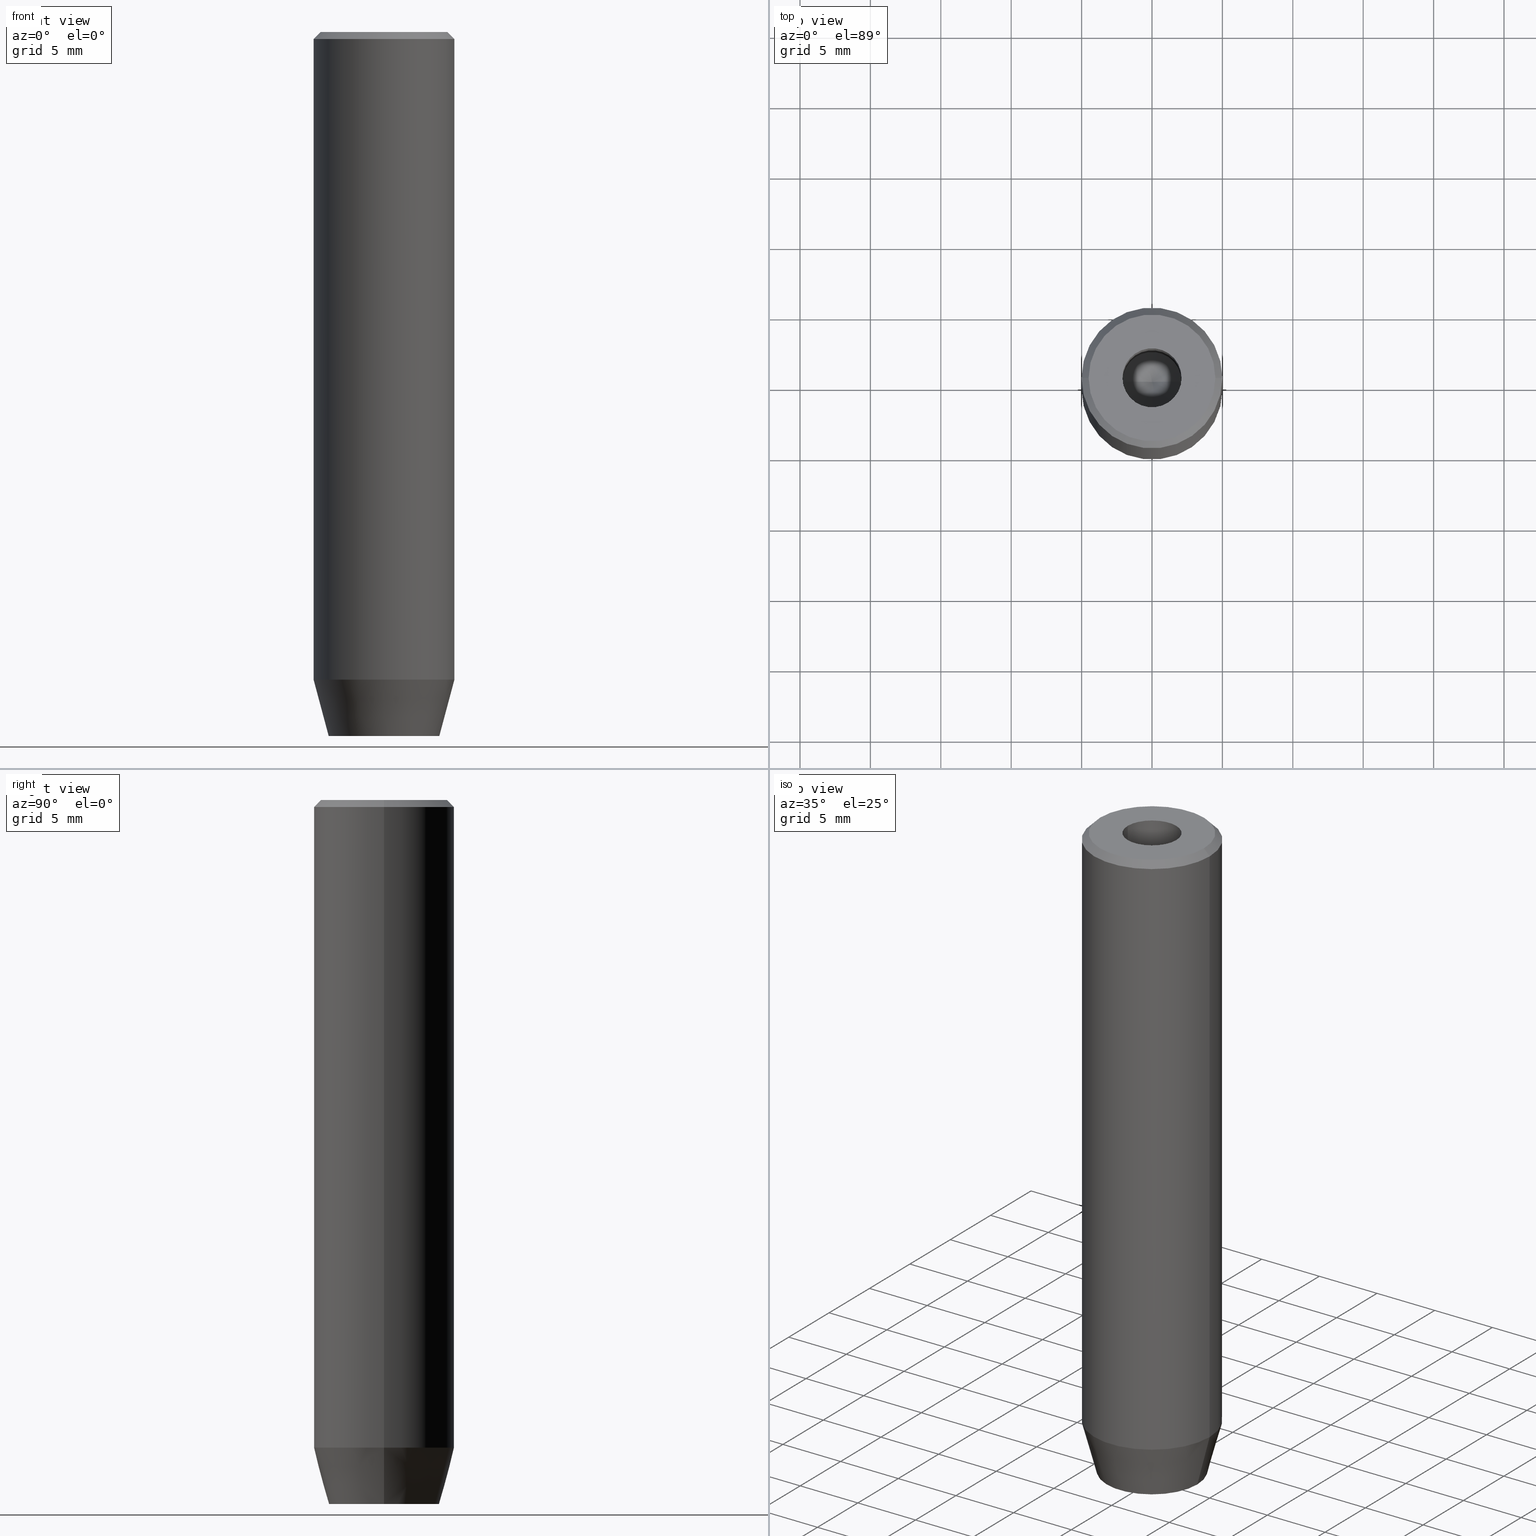
[diagram: canonical four-view strip — front | top / right | iso, engineering-drawing reading convention]
A machine part, canonical four-view strip (front | top / right | iso — engineering-drawing reading convention). The complete STEP part file that produces these views, byte-faithful:
ISO-10303-21;
HEADER;
FILE_DESCRIPTION (( 'STEP AP203' ),
    '1' );
FILE_NAME ('db99.STEP',
    '2024-01-02T23:07:46',
    ( '' ),
    ( '' ),
    'SwSTEP 2.0',
    'SolidWorks 2019',
    '' );
FILE_SCHEMA (( 'CONFIG_CONTROL_DESIGN' ));
ENDSEC;

DATA;
#1 = DIRECTION ( 'NONE',  ( -0.000000000000000000, -0.000000000000000000, 1.000000000000000000 ) ) ;
#2 = LINE ( 'NONE', #177, #182 ) ;
#3 = EDGE_CURVE ( 'NONE', #243, #295, #67, .T. ) ;
#4 = DIRECTION ( 'NONE',  ( -0.000000000000000000, -0.000000000000000000, 1.000000000000000000 ) ) ;
#5 = DIRECTION ( 'NONE',  ( -0.000000000000000000, -0.000000000000000000, -1.000000000000000000 ) ) ;
#6 = AXIS2_PLACEMENT_3D ( 'NONE', #488, #83, #267 ) ;
#7 = CARTESIAN_POINT ( 'NONE',  ( 2.000000000000000888, -1.154700538379252572, -47.20000000000000284 ) ) ;
#8 = EDGE_LOOP ( 'NONE', ( #198, #510, #54, #251 ) ) ;
#9 = CARTESIAN_POINT ( 'NONE',  ( 0.000000000000000000, 0.000000000000000000, 0.000000000000000000 ) ) ;
#10 = FACE_OUTER_BOUND ( 'NONE', #161, .T. ) ;
#11 = ORIENTED_EDGE ( 'NONE', *, *, #30, .F. ) ;
#12 = ADVANCED_FACE ( 'NONE', ( #63 ), #222, .F. ) ;
#13 = ORIENTED_EDGE ( 'NONE', *, *, #552, .F. ) ;
#14 = ORIENTED_EDGE ( 'NONE', *, *, #470, .T. ) ;
#15 = AXIS2_PLACEMENT_3D ( 'NONE', #231, #185, #364 ) ;
#16 = EDGE_CURVE ( 'NONE', #561, #379, #352, .T. ) ;
#17 = CARTESIAN_POINT ( 'NONE',  ( 0.000000000000000000, 0.000000000000000000, -46.00000000000000000 ) ) ;
#18 = ORIENTED_EDGE ( 'NONE', *, *, #101, .T. ) ;
#19 = CARTESIAN_POINT ( 'NONE',  ( 2.099999999999997868, 0.000000000000000000, 0.000000000000000000 ) ) ;
#20 = ORIENTED_EDGE ( 'NONE', *, *, #224, .T. ) ;
#21 = LINE ( 'NONE', #238, #201 ) ;
#22 = EDGE_LOOP ( 'NONE', ( #551, #96, #205, #208 ) ) ;
#23 = DIRECTION ( 'NONE',  ( -0.000000000000000000, -0.000000000000000000, 1.000000000000000000 ) ) ;
#24 = EDGE_LOOP ( 'NONE', ( #389, #195, #98, #93, #433, #100 ) ) ;
#25 = EDGE_CURVE ( 'NONE', #236, #104, #170, .T. ) ;
#26 = MECHANICAL_CONTEXT ( 'NONE', #517, 'mechanical' ) ;
#27 = ORIENTED_EDGE ( 'NONE', *, *, #235, .F. ) ;
#28 = APPROVAL_DATE_TIME ( #339, #48 ) ;
#29 = ORIENTED_EDGE ( 'NONE', *, *, #178, .F. ) ;
#30 = EDGE_CURVE ( 'NONE', #374, #368, #181, .T. ) ;
#31 = PERSON_AND_ORGANIZATION ( #171, #40 ) ;
#32 = PLANE ( 'NONE',  #192 ) ;
#33 = CARTESIAN_POINT ( 'NONE',  ( -1.999999999999998668, -1.154700538379252572, -50.00000000000000000 ) ) ;
#34 = CARTESIAN_POINT ( 'NONE',  ( -2.099999999999998757, 2.571758278209439985E-16, -1.990051048614449116E-16 ) ) ;
#35 = APPLICATION_PROTOCOL_DEFINITION ( 'international standard', 'config_control_design', 1994, #263 ) ;
#36 = LINE ( 'NONE', #39, #574 ) ;
#37 = LINE ( 'NONE', #175, #429 ) ;
#38 = AXIS2_PLACEMENT_3D ( 'NONE', #310, #79, #262 ) ;
#39 = CARTESIAN_POINT ( 'NONE',  ( -2.099999999999997868, 2.571758278209438999E-16, 0.000000000000000000 ) ) ;
#40 = ORGANIZATION ( 'NEUR�EN�', 'NEUR�EN�', '' ) ;
#41 = CARTESIAN_POINT ( 'NONE',  ( 0.000000000000000000, 0.000000000000000000, -1.990051048614449116E-16 ) ) ;
#42 = EDGE_CURVE ( 'NONE', #145, #74, #122, .T. ) ;
#43 = CARTESIAN_POINT ( 'NONE',  ( 5.000000000000000000, 0.000000000000000000, -0.4999999999999995559 ) ) ;
#44 = FACE_OUTER_BOUND ( 'NONE', #53, .T. ) ;
#45 = DIRECTION ( 'NONE',  ( -0.000000000000000000, -0.000000000000000000, -1.000000000000000000 ) ) ;
#46 = ORIENTED_EDGE ( 'NONE', *, *, #343, .F. ) ;
#47 = CARTESIAN_POINT ( 'NONE',  ( -5.000000000000000000, 6.123233995736766282E-16, -46.00000000000000000 ) ) ;
#48 = APPROVAL ( #80, 'NEUR�EN�' ) ;
#49 = CIRCLE ( 'NONE', #380, 5.000000000000000000 ) ;
#50 = CARTESIAN_POINT ( 'NONE',  ( -1.999999999999998668, -1.154700538379252572, -47.20000000000000284 ) ) ;
#51 = ORIENTED_EDGE ( 'NONE', *, *, #241, .T. ) ;
#52 = CC_DESIGN_PERSON_AND_ORGANIZATION_ASSIGNMENT ( #129, #438, ( #146 ) ) ;
#53 = EDGE_LOOP ( 'NONE', ( #232, #425, #14, #280 ) ) ;
#54 = ORIENTED_EDGE ( 'NONE', *, *, #65, .F. ) ;
#55 = ADVANCED_FACE ( 'NONE', ( #307 ), #577, .F. ) ;
#56 = CARTESIAN_POINT ( 'NONE',  ( 2.000000000000000888, 0.000000000000000000, -50.00000000000000000 ) ) ;
#57 = VERTEX_POINT ( 'NONE', #538 ) ;
#58 = AXIS2_PLACEMENT_3D ( 'NONE', #318, #227, #548 ) ;
#59 = CC_DESIGN_APPROVAL ( #142, ( #146 ) ) ;
#60 = DIRECTION ( 'NONE',  ( 0.8660254037844385966, -0.5000000000000001110, 0.000000000000000000 ) ) ;
#61 = EDGE_LOOP ( 'NONE', ( #508, #66, #411, #456 ) ) ;
#62 = CARTESIAN_POINT ( 'NONE',  ( 1.000000000000000444, 1.732050807568877637, -50.00000000000000000 ) ) ;
#63 = FACE_OUTER_BOUND ( 'NONE', #61, .T. ) ;
#64 = FACE_OUTER_BOUND ( 'NONE', #248, .T. ) ;
#65 = EDGE_CURVE ( 'NONE', #104, #111, #49, .T. ) ;
#66 = ORIENTED_EDGE ( 'NONE', *, *, #224, .F. ) ;
#67 = CIRCLE ( 'NONE', #359, 4.499999999999997335 ) ;
#68 = VECTOR ( 'NONE', #557, 1000.000000000000000 ) ;
#69 = PERSON_AND_ORGANIZATION_ROLE ( 'design_supplier' ) ;
#70 = ORIENTED_EDGE ( 'NONE', *, *, #451, .T. ) ;
#71 = VERTEX_POINT ( 'NONE', #126 ) ;
#72 = EDGE_CURVE ( 'NONE', #335, #379, #247, .T. ) ;
#73 = DATE_TIME_ROLE ( 'creation_date' ) ;
#74 = VERTEX_POINT ( 'NONE', #75 ) ;
#75 = CARTESIAN_POINT ( 'NONE',  ( 2.168404344971008868E-16, -2.309401076758503812, -50.00000000000000000 ) ) ;
#76 = AXIS2_PLACEMENT_3D ( 'NONE', #326, #110, #246 ) ;
#77 = APPROVAL_PERSON_ORGANIZATION ( #264, #142, #207 ) ;
#78 = DIRECTION ( 'NONE',  ( -1.000000000000000000, 0.000000000000000000, -0.000000000000000000 ) ) ;
#79 = DIRECTION ( 'NONE',  ( 0.000000000000000000, 0.000000000000000000, -1.000000000000000000 ) ) ;
#80 = APPROVAL_STATUS ( 'not_yet_approved' ) ;
#81 = DIRECTION ( 'NONE',  ( -0.8660254037844388186, -0.4999999999999996114, 0.000000000000000000 ) ) ;
#82 = CARTESIAN_POINT ( 'NONE',  ( 2.168404344971008868E-16, -2.309401076758503812, -47.20000000000000284 ) ) ;
#83 = DIRECTION ( 'NONE',  ( 0.5000000000000001110, 0.8660254037844385966, -0.000000000000000000 ) ) ;
#84 = EDGE_CURVE ( 'NONE', #74, #117, #356, .T. ) ;
#85 = DIRECTION ( 'NONE',  ( -0.000000000000000000, -0.000000000000000000, 1.000000000000000000 ) ) ;
#86 = CARTESIAN_POINT ( 'NONE',  ( 0.9999999999999997780, -1.732050807568878747, -50.00000000000000000 ) ) ;
#87 = CARTESIAN_POINT ( 'NONE',  ( 2.000000000000000888, -1.154700538379252572, -47.20000000000000284 ) ) ;
#88 = CARTESIAN_POINT ( 'NONE',  ( 0.000000000000000000, 0.000000000000000000, -46.00000000000000000 ) ) ;
#89 = VERTEX_POINT ( 'NONE', #443 ) ;
#90 = CARTESIAN_POINT ( 'NONE',  ( 0.000000000000000000, 0.000000000000000000, 0.000000000000000000 ) ) ;
#91 = EDGE_CURVE ( 'NONE', #335, #299, #36, .T. ) ;
#92 = DIRECTION ( 'NONE',  ( -0.5000000000000000000, -0.8660254037844387076, 0.000000000000000000 ) ) ;
#93 = ORIENTED_EDGE ( 'NONE', *, *, #390, .T. ) ;
#94 = FACE_OUTER_BOUND ( 'NONE', #22, .T. ) ;
#95 = AXIS2_PLACEMENT_3D ( 'NONE', #536, #405, #399 ) ;
#96 = ORIENTED_EDGE ( 'NONE', *, *, #91, .T. ) ;
#97 = CC_DESIGN_SECURITY_CLASSIFICATION ( #458, ( #146 ) ) ;
#98 = ORIENTED_EDGE ( 'NONE', *, *, #419, .T. ) ;
#99 = CARTESIAN_POINT ( 'NONE',  ( 0.9999999999999997780, -1.732050807568878747, -47.20000000000000284 ) ) ;
#100 = ORIENTED_EDGE ( 'NONE', *, *, #403, .T. ) ;
#101 = EDGE_CURVE ( 'NONE', #379, #335, #484, .T. ) ;
#102 = DIRECTION ( 'NONE',  ( -0.5000000000000001110, 0.8660254037844385966, 0.000000000000000000 ) ) ;
#103 = VECTOR ( 'NONE', #309, 1000.000000000000000 ) ;
#104 = VERTEX_POINT ( 'NONE', #400 ) ;
#105 = VECTOR ( 'NONE', #452, 1000.000000000000000 ) ;
#106 = AXIS2_PLACEMENT_3D ( 'NONE', #9, #187, #289 ) ;
#107 = DIRECTION ( 'NONE',  ( -0.2588190451025210725, 3.169619151431769255E-17, 0.9659258262890680902 ) ) ;
#108 = ORIENTED_EDGE ( 'NONE', *, *, #434, .T. ) ;
#109 = EDGE_CURVE ( 'NONE', #368, #374, #221, .T. ) ;
#110 = DIRECTION ( 'NONE',  ( 0.4999999999999996669, -0.8660254037844388186, 0.000000000000000000 ) ) ;
#111 = VERTEX_POINT ( 'NONE', #43 ) ;
#112 = DIRECTION ( 'NONE',  ( 0.000000000000000000, -1.000000000000000000, 0.000000000000000000 ) ) ;
#113 = VERTEX_POINT ( 'NONE', #585 ) ;
#114 = AXIS2_PLACEMENT_3D ( 'NONE', #41, #134, #454 ) ;
#115 = VECTOR ( 'NONE', #107, 1000.000000000000114 ) ;
#116 = DIRECTION ( 'NONE',  ( 5.633679745264339711E-16, 1.000000000000000000, 0.000000000000000000 ) ) ;
#117 = VERTEX_POINT ( 'NONE', #33 ) ;
#118 = EDGE_CURVE ( 'NONE', #459, #236, #475, .T. ) ;
#119 = APPROVAL_ROLE ( '' ) ;
#120 = FACE_BOUND ( 'NONE', #365, .T. ) ;
#121 = CALENDAR_DATE ( 2024, 3, 1 ) ;
#122 = LINE ( 'NONE', #86, #482 ) ;
#123 = DIRECTION ( 'NONE',  ( -0.000000000000000000, -0.000000000000000000, -1.000000000000000000 ) ) ;
#124 = VECTOR ( 'NONE', #539, 1000.000000000000000 ) ;
#125 = CARTESIAN_POINT ( 'NONE',  ( -1.999999999999998224, 1.126735949052866956E-15, -50.00000000000000000 ) ) ;
#126 = CARTESIAN_POINT ( 'NONE',  ( 2.000000000000000888, 1.154700538379251462, -47.20000000000000284 ) ) ;
#127 = DIRECTION ( 'NONE',  ( -0.000000000000000000, -0.000000000000000000, 1.000000000000000000 ) ) ;
#128 = ADVANCED_FACE ( 'NONE', ( #120, #395 ), #398, .T. ) ;
#129 = PERSON_AND_ORGANIZATION ( #171, #40 ) ;
#130 = CARTESIAN_POINT ( 'NONE',  ( 0.000000000000000000, 0.000000000000000000, -50.00000000000000000 ) ) ;
#131 = PLANE ( 'NONE',  #237 ) ;
#132 = COORDINATED_UNIVERSAL_TIME_OFFSET ( 1, 0, .AHEAD. ) ;
#133 = DIRECTION ( 'NONE',  ( -0.000000000000000000, -0.000000000000000000, 1.000000000000000000 ) ) ;
#134 = DIRECTION ( 'NONE',  ( -0.000000000000000000, -0.000000000000000000, 1.000000000000000000 ) ) ;
#135 = AXIS2_PLACEMENT_3D ( 'NONE', #90, #274, #531 ) ;
#136 = DIRECTION ( 'NONE',  ( -0.000000000000000000, -0.000000000000000000, -1.000000000000000000 ) ) ;
#137 = LOCAL_TIME ( 0, 7, 46.00000000000000000, #394 ) ;
#138 = ADVANCED_FACE ( 'NONE', ( #528 ), #371, .T. ) ;
#139 = FACE_OUTER_BOUND ( 'NONE', #520, .T. ) ;
#140 = FACE_OUTER_BOUND ( 'NONE', #340, .T. ) ;
#141 = ORIENTED_EDGE ( 'NONE', *, *, #578, .T. ) ;
#142 = APPROVAL ( #298, 'NEUR�EN�' ) ;
#143 = CARTESIAN_POINT ( 'NONE',  ( 2.000000000000000888, 1.154700538379251462, -47.20000000000000284 ) ) ;
#144 = ORIENTED_EDGE ( 'NONE', *, *, #84, .F. ) ;
#145 = VERTEX_POINT ( 'NONE', #481 ) ;
#146 = PRODUCT_DEFINITION_FORMATION_WITH_SPECIFIED_SOURCE ( 'LIBOVOLN�', '', #369, .NOT_KNOWN. ) ;
#147 = ADVANCED_FACE ( 'NONE', ( #440 ), #32, .F. ) ;
#148 = CARTESIAN_POINT ( 'NONE',  ( 0.000000000000000000, 0.000000000000000000, -0.4999999999999995559 ) ) ;
#149 = ORIENTED_EDGE ( 'NONE', *, *, #173, .T. ) ;
#150 = DIRECTION ( 'NONE',  ( 5.633679745264339711E-16, 1.000000000000000000, 0.000000000000000000 ) ) ;
#151 = EDGE_LOOP ( 'NONE', ( #186, #549, #522, #29 ) ) ;
#152 = PLANE ( 'NONE',  #514 ) ;
#153 = ORIENTED_EDGE ( 'NONE', *, *, #3, .T. ) ;
#154 = PRODUCT_DEFINITION ( 'NEZN�M�', '', #146, #387 ) ;
#155 = DIRECTION ( 'NONE',  ( -0.000000000000000000, -0.000000000000000000, 1.000000000000000000 ) ) ;
#156 = ORIENTED_EDGE ( 'NONE', *, *, #159, .T. ) ;
#157 = DIRECTION ( 'NONE',  ( 0.000000000000000000, -1.000000000000000000, 0.000000000000000000 ) ) ;
#158 = CARTESIAN_POINT ( 'NONE',  ( 0.000000000000000000, 0.000000000000000000, 0.000000000000000000 ) ) ;
#159 = EDGE_CURVE ( 'NONE', #377, #145, #321, .T. ) ;
#160 = DIRECTION ( 'NONE',  ( 0.000000000000000000, 0.000000000000000000, 1.000000000000000000 ) ) ;
#161 = EDGE_LOOP ( 'NONE', ( #229, #203, #51, #254 ) ) ;
#162 = AXIS2_PLACEMENT_3D ( 'NONE', #349, #85, #360 ) ;
#163 = AXIS2_PLACEMENT_3D ( 'NONE', #566, #463, #202 ) ;
#164 = APPLICATION_PROTOCOL_DEFINITION ( 'international standard', 'config_control_design', 1994, #517 ) ;
#165 = ORIENTED_EDGE ( 'NONE', *, *, #302, .F. ) ;
#166 =( NAMED_UNIT ( * ) SI_UNIT ( $, .STERADIAN. ) SOLID_ANGLE_UNIT ( ) );
#167 = DIRECTION ( 'NONE',  ( -0.000000000000000000, -0.000000000000000000, 1.000000000000000000 ) ) ;
#168 = FACE_OUTER_BOUND ( 'NONE', #563, .T. ) ;
#169 = DATE_AND_TIME ( #581, #137 ) ;
#170 = LINE ( 'NONE', #347, #103 ) ;
#171 = PERSON ( 'NEUR�EN�', 'NEUR�EN�', 'NEUR�EN�', ('NEUR�EN�'), ('NEUR�EN�'), ('NEUR�EN�') ) ;
#172 = CARTESIAN_POINT ( 'NONE',  ( -1.999999999999997780, 1.154700538379253238, -47.20000000000000284 ) ) ;
#173 = EDGE_CURVE ( 'NONE', #417, #117, #410, .T. ) ;
#174 = DIRECTION ( 'NONE',  ( 1.000000000000000000, 0.000000000000000000, 0.000000000000000000 ) ) ;
#175 = CARTESIAN_POINT ( 'NONE',  ( 2.168404344971008868E-16, -2.309401076758503812, -47.20000000000000284 ) ) ;
#176 = DIRECTION ( 'NONE',  ( 1.000000000000000000, 0.000000000000000000, 0.000000000000000000 ) ) ;
#177 = CARTESIAN_POINT ( 'NONE',  ( 1.000000000000000444, 1.732050807568877637, -47.20000000000000284 ) ) ;
#178 = EDGE_CURVE ( 'NONE', #236, #459, #269, .T. ) ;
#179 = CYLINDRICAL_SURFACE ( 'NONE', #58, 5.000000000000000000 ) ;
#180 = CARTESIAN_POINT ( 'NONE',  ( 0.000000000000000000, 0.000000000000000000, 0.000000000000000000 ) ) ;
#181 = CIRCLE ( 'NONE', #331, 3.928203230275506996 ) ;
#182 = VECTOR ( 'NONE', #217, 1000.000000000000000 ) ;
#183 = APPROVAL_DATE_TIME ( #490, #573 ) ;
#184 = AXIS2_PLACEMENT_3D ( 'NONE', #571, #160, #260 ) ;
#185 = DIRECTION ( 'NONE',  ( -0.000000000000000000, -0.000000000000000000, 1.000000000000000000 ) ) ;
#186 = ORIENTED_EDGE ( 'NONE', *, *, #541, .F. ) ;
#187 = DIRECTION ( 'NONE',  ( -0.000000000000000000, -0.000000000000000000, 1.000000000000000000 ) ) ;
#188 = DIRECTION ( 'NONE',  ( 1.000000000000000000, 0.000000000000000000, 0.000000000000000000 ) ) ;
#189 = ORIENTED_EDGE ( 'NONE', *, *, #570, .F. ) ;
#190 = VERTEX_POINT ( 'NONE', #279 ) ;
#191 = CC_DESIGN_PERSON_AND_ORGANIZATION_ASSIGNMENT ( #529, #525, ( #154 ) ) ;
#192 = AXIS2_PLACEMENT_3D ( 'NONE', #485, #92, #499 ) ;
#193 = ORIENTED_EDGE ( 'NONE', *, *, #3, .F. ) ;
#194 = CARTESIAN_POINT ( 'NONE',  ( 5.000000000000000000, 0.000000000000000000, -46.00000000000000000 ) ) ;
#195 = ORIENTED_EDGE ( 'NONE', *, *, #327, .T. ) ;
#196 = FACE_OUTER_BOUND ( 'NONE', #281, .T. ) ;
#197 = ADVANCED_FACE ( 'NONE', ( #94 ), #455, .F. ) ;
#198 = ORIENTED_EDGE ( 'NONE', *, *, #259, .F. ) ;
#199 = DIRECTION ( 'NONE',  ( -0.000000000000000000, -0.000000000000000000, 1.000000000000000000 ) ) ;
#200 = ORIENTED_EDGE ( 'NONE', *, *, #513, .T. ) ;
#201 = VECTOR ( 'NONE', #468, 1000.000000000000114 ) ;
#202 = DIRECTION ( 'NONE',  ( 1.000000000000000000, 0.000000000000000000, 0.000000000000000000 ) ) ;
#203 = ORIENTED_EDGE ( 'NONE', *, *, #178, .T. ) ;
#204 =( LENGTH_UNIT ( ) NAMED_UNIT ( * ) SI_UNIT ( .MILLI., .METRE. ) );
#205 = ORIENTED_EDGE ( 'NONE', *, *, #343, .T. ) ;
#206 = ADVANCED_FACE ( 'NONE', ( #10 ), #179, .T. ) ;
#207 = APPROVAL_ROLE ( '' ) ;
#208 = ORIENTED_EDGE ( 'NONE', *, *, #470, .F. ) ;
#209 = VECTOR ( 'NONE', #547, 1000.000000000000114 ) ;
#210 = LOCAL_TIME ( 0, 7, 46.00000000000000000, #250 ) ;
#211 = PERSON_AND_ORGANIZATION_ROLE ( 'classification_officer' ) ;
#212 = DIRECTION ( 'NONE',  ( 1.000000000000000000, 0.000000000000000000, 0.000000000000000000 ) ) ;
#213 = CARTESIAN_POINT ( 'NONE',  ( -1.000000000000000222, -1.732050807568877637, -47.20000000000000284 ) ) ;
#214 = LINE ( 'NONE', #125, #555 ) ;
#215 = CARTESIAN_POINT ( 'NONE',  ( 2.099999999999996980, 0.000000000000000000, -15.00000000000000000 ) ) ;
#216 = ADVANCED_FACE ( 'NONE', ( #358, #140 ), #414, .T. ) ;
#217 = DIRECTION ( 'NONE',  ( 0.8660254037844385966, -0.5000000000000001110, 0.000000000000000000 ) ) ;
#218 = DATE_AND_TIME ( #255, #210 ) ;
#219 = CARTESIAN_POINT ( 'NONE',  ( 0.000000000000000000, 0.000000000000000000, -15.00000000000000000 ) ) ;
#220 = CARTESIAN_POINT ( 'NONE',  ( -5.000000000000000000, 6.123233995736766282E-16, -46.00000000000000000 ) ) ;
#221 = CIRCLE ( 'NONE', #494, 3.928203230275506996 ) ;
#222 = PLANE ( 'NONE',  #6 ) ;
#223 = PLANE ( 'NONE',  #38 ) ;
#224 = EDGE_CURVE ( 'NONE', #71, #469, #367, .T. ) ;
#225 = CARTESIAN_POINT ( 'NONE',  ( 0.000000000000000000, 0.000000000000000000, -46.00000000000000000 ) ) ;
#226 = DIRECTION ( 'NONE',  ( 0.000000000000000000, 0.000000000000000000, -1.000000000000000000 ) ) ;
#227 = DIRECTION ( 'NONE',  ( -0.000000000000000000, -0.000000000000000000, 1.000000000000000000 ) ) ;
#228 = PRODUCT_DEFINITION_SHAPE ( 'NONE', 'NONE',  #154 ) ;
#229 = ORIENTED_EDGE ( 'NONE', *, *, #25, .F. ) ;
#230 = LINE ( 'NONE', #194, #297 ) ;
#231 = CARTESIAN_POINT ( 'NONE',  ( 0.000000000000000000, 0.000000000000000000, 0.000000000000000000 ) ) ;
#232 = ORIENTED_EDGE ( 'NONE', *, *, #91, .F. ) ;
#233 = CALENDAR_DATE ( 2024, 3, 1 ) ;
#234 = ORIENTED_EDGE ( 'NONE', *, *, #496, .F. ) ;
#235 = EDGE_CURVE ( 'NONE', #428, #190, #316, .T. ) ;
#236 = VERTEX_POINT ( 'NONE', #220 ) ;
#237 = AXIS2_PLACEMENT_3D ( 'NONE', #357, #497, #345 ) ;
#238 = CARTESIAN_POINT ( 'NONE',  ( -4.499999999999997335, 0.000000000000000000, 0.000000000000000000 ) ) ;
#239 = ORIENTED_EDGE ( 'NONE', *, *, #16, .F. ) ;
#240 = CONICAL_SURFACE ( 'NONE', #350, 5.000000000000000000, 0.2617993877991497964 ) ;
#241 = EDGE_CURVE ( 'NONE', #459, #111, #543, .T. ) ;
#242 = PLANE ( 'NONE',  #76 ) ;
#243 = VERTEX_POINT ( 'NONE', #489 ) ;
#244 = LINE ( 'NONE', #559, #381 ) ;
#245 = VERTEX_POINT ( 'NONE', #82 ) ;
#246 = DIRECTION ( 'NONE',  ( 0.8660254037844388186, 0.4999999999999996669, 0.000000000000000000 ) ) ;
#247 = CIRCLE ( 'NONE', #534, 2.099999999999996980 ) ;
#248 = EDGE_LOOP ( 'NONE', ( #553, #415, #273, #156 ) ) ;
#249 = UNCERTAINTY_MEASURE_WITH_UNIT (LENGTH_MEASURE( 1.000000000000000082E-05 ), #204, 'distance_accuracy_value', 'NONE');
#250 = COORDINATED_UNIVERSAL_TIME_OFFSET ( 1, 0, .AHEAD. ) ;
#251 = ORIENTED_EDGE ( 'NONE', *, *, #451, .F. ) ;
#252 = EDGE_CURVE ( 'NONE', #245, #417, #486, .T. ) ;
#253 = PERSON_AND_ORGANIZATION_ROLE ( 'design_owner' ) ;
#254 = ORIENTED_EDGE ( 'NONE', *, *, #496, .T. ) ;
#255 = CALENDAR_DATE ( 2024, 3, 1 ) ;
#256 = DIRECTION ( 'NONE',  ( 0.000000000000000000, 0.000000000000000000, -1.000000000000000000 ) ) ;
#257 = VECTOR ( 'NONE', #157, 1000.000000000000000 ) ;
#258 = LOCAL_TIME ( 0, 7, 46.00000000000000000, #480 ) ;
#259 = EDGE_CURVE ( 'NONE', #295, #243, #341, .T. ) ;
#260 = DIRECTION ( 'NONE',  ( 1.000000000000000000, 0.000000000000000000, 0.000000000000000000 ) ) ;
#261 = CARTESIAN_POINT ( 'NONE',  ( 2.000000000000000888, 0.000000000000000000, -47.20000000000000284 ) ) ;
#262 = DIRECTION ( 'NONE',  ( -1.000000000000000000, 0.000000000000000000, -0.000000000000000000 ) ) ;
#263 = APPLICATION_CONTEXT ( 'configuration controlled 3d designs of mechanical parts and assemblies' ) ;
#264 = PERSON_AND_ORGANIZATION ( #171, #40 ) ;
#265 = CARTESIAN_POINT ( 'NONE',  ( -1.000000000000000222, -1.732050807568877637, -50.00000000000000000 ) ) ;
#266 = DIRECTION ( 'NONE',  ( -1.000000000000000000, 0.000000000000000000, 0.000000000000000000 ) ) ;
#267 = DIRECTION ( 'NONE',  ( -0.8660254037844385966, 0.5000000000000001110, 0.000000000000000000 ) ) ;
#268 = CARTESIAN_POINT ( 'NONE',  ( -3.928203230275506996, 5.466947754046979141E-16, -50.00000000000000000 ) ) ;
#269 = CIRCLE ( 'NONE', #545, 5.000000000000000000 ) ;
#270 = DIRECTION ( 'NONE',  ( -0.000000000000000000, 0.000000000000000000, -1.000000000000000000 ) ) ;
#271 = CYLINDRICAL_SURFACE ( 'NONE', #420, 2.099999999999997868 ) ;
#272 = CARTESIAN_POINT ( 'NONE',  ( -1.000000000000000444, 1.732050807568877637, -47.20000000000000284 ) ) ;
#273 = ORIENTED_EDGE ( 'NONE', *, *, #390, .F. ) ;
#274 = DIRECTION ( 'NONE',  ( 0.000000000000000000, 0.000000000000000000, -1.000000000000000000 ) ) ;
#275 = DIRECTION ( 'NONE',  ( -0.000000000000000000, -0.000000000000000000, 1.000000000000000000 ) ) ;
#276 = ORIENTED_EDGE ( 'NONE', *, *, #84, .T. ) ;
#277 = AXIS2_PLACEMENT_3D ( 'NONE', #407, #342, #78 ) ;
#278 = ADVANCED_FACE ( 'NONE', ( #401 ), #223, .T. ) ;
#279 = CARTESIAN_POINT ( 'NONE',  ( 0.000000000000000000, 2.309401076758503812, -47.20000000000000284 ) ) ;
#280 = ORIENTED_EDGE ( 'NONE', *, *, #284, .T. ) ;
#281 = EDGE_LOOP ( 'NONE', ( #239, #141, #338 ) ) ;
#282 = CARTESIAN_POINT ( 'NONE',  ( 5.000000000000000000, 0.000000000000000000, -46.00000000000000000 ) ) ;
#283 = ORIENTED_EDGE ( 'NONE', *, *, #419, .F. ) ;
#284 = EDGE_CURVE ( 'NONE', #113, #299, #565, .T. ) ;
#285 = CIRCLE ( 'NONE', #162, 2.099999999999998757 ) ;
#286 = VECTOR ( 'NONE', #396, 999.9999999999998863 ) ;
#287 = CARTESIAN_POINT ( 'NONE',  ( -1.000000000000000444, 1.732050807568877637, -50.00000000000000000 ) ) ;
#288 = ORIENTED_EDGE ( 'NONE', *, *, #541, .T. ) ;
#289 = DIRECTION ( 'NONE',  ( 1.000000000000000000, 0.000000000000000000, 0.000000000000000000 ) ) ;
#290 = DIRECTION ( 'NONE',  ( -0.000000000000000000, -0.000000000000000000, 1.000000000000000000 ) ) ;
#291 = DIRECTION ( 'NONE',  ( -0.8660254037844385966, -0.5000000000000001110, 0.000000000000000000 ) ) ;
#292 = ORIENTED_EDGE ( 'NONE', *, *, #336, .F. ) ;
#293 = LINE ( 'NONE', #47, #115 ) ;
#294 = ADVANCED_FACE ( 'NONE', ( #587 ), #305, .T. ) ;
#295 = VERTEX_POINT ( 'NONE', #313 ) ;
#296 = AXIS2_PLACEMENT_3D ( 'NONE', #180, #226, #266 ) ;
#297 = VECTOR ( 'NONE', #412, 1000.000000000000114 ) ;
#298 = APPROVAL_STATUS ( 'not_yet_approved' ) ;
#299 = VERTEX_POINT ( 'NONE', #34 ) ;
#300 = CC_DESIGN_PERSON_AND_ORGANIZATION_ASSIGNMENT ( #477, #69, ( #146 ) ) ;
#301 = CARTESIAN_POINT ( 'NONE',  ( 0.000000000000000000, 0.000000000000000000, -46.00000000000000000 ) ) ;
#302 = EDGE_CURVE ( 'NONE', #295, #111, #583, .T. ) ;
#303 = APPROVAL_DATE_TIME ( #218, #142 ) ;
#304 = DIRECTION ( 'NONE',  ( 1.000000000000000000, 0.000000000000000000, 0.000000000000000000 ) ) ;
#305 = CONICAL_SURFACE ( 'NONE', #296, 4.499999999999997335, 0.7853981633974517207 ) ;
#306 = LINE ( 'NONE', #99, #314 ) ;
#307 = FACE_OUTER_BOUND ( 'NONE', #383, .T. ) ;
#308 = DIRECTION ( 'NONE',  ( 1.000000000000000000, 0.000000000000000000, 0.000000000000000000 ) ) ;
#309 = DIRECTION ( 'NONE',  ( -0.000000000000000000, -0.000000000000000000, 1.000000000000000000 ) ) ;
#310 = CARTESIAN_POINT ( 'NONE',  ( 0.000000000000000000, 0.000000000000000000, -47.20000000000000284 ) ) ;
#311 = CARTESIAN_POINT ( 'NONE',  ( 0.000000000000000000, 0.000000000000000000, -50.00000000000000000 ) ) ;
#312 = ADVANCED_FACE ( 'NONE', ( #44 ), #271, .F. ) ;
#313 = CARTESIAN_POINT ( 'NONE',  ( 4.499999999999997335, 5.817072295949926440E-16, 0.000000000000000000 ) ) ;
#314 = VECTOR ( 'NONE', #378, 1000.000000000000114 ) ;
#315 = CC_DESIGN_APPROVAL ( #48, ( #154 ) ) ;
#316 = LINE ( 'NONE', #272, #105 ) ;
#317 = CARTESIAN_POINT ( 'NONE',  ( 0.000000000000000000, 2.309401076758503812, -47.20000000000000284 ) ) ;
#318 = CARTESIAN_POINT ( 'NONE',  ( 0.000000000000000000, 0.000000000000000000, 0.000000000000000000 ) ) ;
#319 = ORIENTED_EDGE ( 'NONE', *, *, #513, .F. ) ;
#320 = EDGE_CURVE ( 'NONE', #245, #74, #37, .T. ) ;
#321 = LINE ( 'NONE', #7, #584 ) ;
#322 = ORIENTED_EDGE ( 'NONE', *, *, #118, .F. ) ;
#323 = AXIS2_PLACEMENT_3D ( 'NONE', #501, #550, #188 ) ;
#324 = AXIS2_PLACEMENT_3D ( 'NONE', #148, #430, #521 ) ;
#325 = ORIENTED_EDGE ( 'NONE', *, *, #403, .F. ) ;
#326 = CARTESIAN_POINT ( 'NONE',  ( 0.9999999999999997780, -1.732050807568878747, -47.20000000000000284 ) ) ;
#327 = EDGE_CURVE ( 'NONE', #190, #71, #2, .T. ) ;
#328 = ORIENTED_EDGE ( 'NONE', *, *, #42, .F. ) ;
#329 = CARTESIAN_POINT ( 'NONE',  ( -1.999999999999998668, -1.154700538379252572, -47.20000000000000284 ) ) ;
#330 = ORIENTED_EDGE ( 'NONE', *, *, #366, .F. ) ;
#331 = AXIS2_PLACEMENT_3D ( 'NONE', #130, #1, #212 ) ;
#332 = LINE ( 'NONE', #62, #393 ) ;
#333 = ORIENTED_EDGE ( 'NONE', *, *, #462, .F. ) ;
#334 = DIRECTION ( 'NONE',  ( 1.000000000000000000, 0.000000000000000000, 0.000000000000000000 ) ) ;
#335 = VERTEX_POINT ( 'NONE', #353 ) ;
#336 = EDGE_CURVE ( 'NONE', #428, #89, #579, .T. ) ;
#337 = FACE_OUTER_BOUND ( 'NONE', #575, .T. ) ;
#338 = ORIENTED_EDGE ( 'NONE', *, *, #72, .T. ) ;
#339 = DATE_AND_TIME ( #537, #402 ) ;
#340 = EDGE_LOOP ( 'NONE', ( #153, #464 ) ) ;
#341 = CIRCLE ( 'NONE', #95, 4.499999999999997335 ) ;
#342 = DIRECTION ( 'NONE',  ( 0.000000000000000000, 0.000000000000000000, -1.000000000000000000 ) ) ;
#343 = EDGE_CURVE ( 'NONE', #299, #113, #285, .T. ) ;
#344 = DIRECTION ( 'NONE',  ( 1.000000000000000000, 0.000000000000000000, 0.000000000000000000 ) ) ;
#345 = DIRECTION ( 'NONE',  ( -5.633679745264339711E-16, -1.000000000000000000, 0.000000000000000000 ) ) ;
#346 = DIRECTION ( 'NONE',  ( -0.8571673007021113344, 1.049727191138617463E-16, 0.5150380749100558209 ) ) ;
#347 = CARTESIAN_POINT ( 'NONE',  ( -5.000000000000000000, 6.123233995736766282E-16, 0.000000000000000000 ) ) ;
#348 = AXIS2_PLACEMENT_3D ( 'NONE', #301, #530, #304 ) ;
#349 = CARTESIAN_POINT ( 'NONE',  ( 0.000000000000000000, 0.000000000000000000, -1.990051048614449116E-16 ) ) ;
#350 = AXIS2_PLACEMENT_3D ( 'NONE', #17, #155, #334 ) ;
#351 = PERSON_AND_ORGANIZATION ( #171, #40 ) ;
#352 = LINE ( 'NONE', #215, #505 ) ;
#353 = CARTESIAN_POINT ( 'NONE',  ( -2.099999999999996980, 2.571758278209438013E-16, -15.00000000000000000 ) ) ;
#354 = ADVANCED_FACE ( 'NONE', ( #168 ), #131, .F. ) ;
#355 = APPROVAL_STATUS ( 'not_yet_approved' ) ;
#356 = LINE ( 'NONE', #265, #361 ) ;
#357 = CARTESIAN_POINT ( 'NONE',  ( -1.999999999999998224, 1.126735949052866956E-15, -47.20000000000000284 ) ) ;
#358 = FACE_BOUND ( 'NONE', #436, .T. ) ;
#359 = AXIS2_PLACEMENT_3D ( 'NONE', #158, #290, #472 ) ;
#360 = DIRECTION ( 'NONE',  ( 1.000000000000000000, 0.000000000000000000, 0.000000000000000000 ) ) ;
#361 = VECTOR ( 'NONE', #404, 999.9999999999998863 ) ;
#362 =( GEOMETRIC_REPRESENTATION_CONTEXT ( 3 ) GLOBAL_UNCERTAINTY_ASSIGNED_CONTEXT ( ( #249 ) ) GLOBAL_UNIT_ASSIGNED_CONTEXT ( ( #204, #483, #166 ) ) REPRESENTATION_CONTEXT ( 'NONE', 'WORKASPACE' ) );
#363 = VECTOR ( 'NONE', #346, 1000.000000000000000 ) ;
#364 = DIRECTION ( 'NONE',  ( 1.000000000000000000, 0.000000000000000000, 0.000000000000000000 ) ) ;
#365 = EDGE_LOOP ( 'NONE', ( #479, #189, #144, #328, #319, #333 ) ) ;
#366 = EDGE_CURVE ( 'NONE', #190, #57, #448, .T. ) ;
#367 = LINE ( 'NONE', #143, #439 ) ;
#368 = VERTEX_POINT ( 'NONE', #492 ) ;
#369 = PRODUCT ( 'db99', 'db99', '', ( #26 ) ) ;
#370 = ORIENTED_EDGE ( 'NONE', *, *, #320, .T. ) ;
#371 = CONICAL_SURFACE ( 'NONE', #348, 5.000000000000000000, 0.2617993877991497964 ) ;
#372 = CC_DESIGN_APPROVAL ( #573, ( #458 ) ) ;
#373 = CARTESIAN_POINT ( 'NONE',  ( 2.000000000000000888, 0.000000000000000000, -47.20000000000000284 ) ) ;
#374 = VERTEX_POINT ( 'NONE', #268 ) ;
#375 = PRODUCT_RELATED_PRODUCT_CATEGORY ( 'detail', '', ( #369 ) ) ;
#376 = CYLINDRICAL_SURFACE ( 'NONE', #106, 5.000000000000000000 ) ;
#377 = VERTEX_POINT ( 'NONE', #87 ) ;
#378 = DIRECTION ( 'NONE',  ( -0.8660254037844388186, -0.4999999999999996114, 0.000000000000000000 ) ) ;
#379 = VERTEX_POINT ( 'NONE', #500 ) ;
#380 = AXIS2_PLACEMENT_3D ( 'NONE', #446, #256, #535 ) ;
#381 = VECTOR ( 'NONE', #150, 1000.000000000000000 ) ;
#382 = FACE_OUTER_BOUND ( 'NONE', #151, .T. ) ;
#383 = EDGE_LOOP ( 'NONE', ( #200, #461, #283, #20 ) ) ;
#384 = ADVANCED_FACE ( 'NONE', ( #139 ), #546, .T. ) ;
#385 = LINE ( 'NONE', #287, #68 ) ;
#386 = ORIENTED_EDGE ( 'NONE', *, *, #570, .T. ) ;
#387 = DESIGN_CONTEXT ( 'detailed design', #263, 'design' ) ;
#388 = LINE ( 'NONE', #432, #363 ) ;
#389 = ORIENTED_EDGE ( 'NONE', *, *, #235, .T. ) ;
#390 = EDGE_CURVE ( 'NONE', #377, #245, #306, .T. ) ;
#391 = SECURITY_CLASSIFICATION_LEVEL ( 'unclassified' ) ;
#392 = ORIENTED_EDGE ( 'NONE', *, *, #25, .T. ) ;
#393 = VECTOR ( 'NONE', #60, 1000.000000000000000 ) ;
#394 = COORDINATED_UNIVERSAL_TIME_OFFSET ( 1, 0, .AHEAD. ) ;
#395 = FACE_OUTER_BOUND ( 'NONE', #418, .T. ) ;
#396 = DIRECTION ( 'NONE',  ( -0.8660254037844387076, 0.5000000000000001110, 0.000000000000000000 ) ) ;
#397 = DATE_AND_TIME ( #121, #258 ) ;
#398 = PLANE ( 'NONE',  #277 ) ;
#399 = DIRECTION ( 'NONE',  ( 1.000000000000000000, 0.000000000000000000, 0.000000000000000000 ) ) ;
#400 = CARTESIAN_POINT ( 'NONE',  ( -5.000000000000000000, 6.123233995736766282E-16, -0.4999999999999995559 ) ) ;
#401 = FACE_OUTER_BOUND ( 'NONE', #24, .T. ) ;
#402 = LOCAL_TIME ( 0, 7, 46.00000000000000000, #576 ) ;
#403 = EDGE_CURVE ( 'NONE', #417, #428, #244, .T. ) ;
#404 = DIRECTION ( 'NONE',  ( -0.8660254037844387076, 0.5000000000000001110, 0.000000000000000000 ) ) ;
#405 = DIRECTION ( 'NONE',  ( -0.000000000000000000, -0.000000000000000000, 1.000000000000000000 ) ) ;
#406 = APPROVAL_ROLE ( '' ) ;
#407 = CARTESIAN_POINT ( 'NONE',  ( 0.000000000000000000, 3.928203230275506996, -50.00000000000000000 ) ) ;
#408 = CARTESIAN_POINT ( 'NONE',  ( 4.499999999999997335, 5.510910596163085611E-16, 0.000000000000000000 ) ) ;
#409 = ADVANCED_FACE ( 'NONE', ( #337 ), #152, .F. ) ;
#410 = LINE ( 'NONE', #50, #523 ) ;
#411 = ORIENTED_EDGE ( 'NONE', *, *, #327, .F. ) ;
#412 = DIRECTION ( 'NONE',  ( 0.2588190451025210725, 0.000000000000000000, 0.9659258262890680902 ) ) ;
#413 = CONICAL_SURFACE ( 'NONE', #457, 2.099999999999996980, 1.029744258676652535 ) ;
#414 = PLANE ( 'NONE',  #323 ) ;
#415 = ORIENTED_EDGE ( 'NONE', *, *, #320, .F. ) ;
#416 = SHAPE_DEFINITION_REPRESENTATION ( #228, #460 ) ;
#417 = VERTEX_POINT ( 'NONE', #329 ) ;
#418 = EDGE_LOOP ( 'NONE', ( #504, #11 ) ) ;
#419 = EDGE_CURVE ( 'NONE', #71, #377, #516, .T. ) ;
#420 = AXIS2_PLACEMENT_3D ( 'NONE', #445, #127, #308 ) ;
#421 = VECTOR ( 'NONE', #112, 1000.000000000000000 ) ;
#422 = CARTESIAN_POINT ( 'NONE',  ( -1.999999999999997780, 1.154700538379253238, -47.20000000000000284 ) ) ;
#423 = ORIENTED_EDGE ( 'NONE', *, *, #284, .F. ) ;
#424 = LINE ( 'NONE', #19, #476 ) ;
#425 = ORIENTED_EDGE ( 'NONE', *, *, #101, .F. ) ;
#426 = LINE ( 'NONE', #56, #421 ) ;
#427 = ADVANCED_FACE ( 'NONE', ( #519 ), #413, .F. ) ;
#428 = VERTEX_POINT ( 'NONE', #422 ) ;
#429 = VECTOR ( 'NONE', #5, 1000.000000000000000 ) ;
#430 = DIRECTION ( 'NONE',  ( 0.000000000000000000, 0.000000000000000000, -1.000000000000000000 ) ) ;
#431 = ORIENTED_EDGE ( 'NONE', *, *, #118, .T. ) ;
#432 = CARTESIAN_POINT ( 'NONE',  ( -2.099999999999996980, 2.571758278209438013E-16, -15.00000000000000000 ) ) ;
#433 = ORIENTED_EDGE ( 'NONE', *, *, #252, .T. ) ;
#434 = EDGE_CURVE ( 'NONE', #89, #57, #385, .T. ) ;
#435 = PERSON_AND_ORGANIZATION ( #171, #40 ) ;
#436 = EDGE_LOOP ( 'NONE', ( #423, #46 ) ) ;
#437 = CC_DESIGN_PERSON_AND_ORGANIZATION_ASSIGNMENT ( #31, #211, ( #458 ) ) ;
#438 = PERSON_AND_ORGANIZATION_ROLE ( 'creator' ) ;
#439 = VECTOR ( 'NONE', #544, 1000.000000000000000 ) ;
#440 = FACE_OUTER_BOUND ( 'NONE', #558, .T. ) ;
#441 = DIRECTION ( 'NONE',  ( 1.000000000000000000, 0.000000000000000000, -0.000000000000000000 ) ) ;
#442 = DIRECTION ( 'NONE',  ( -0.000000000000000000, -0.000000000000000000, 1.000000000000000000 ) ) ;
#443 = CARTESIAN_POINT ( 'NONE',  ( -1.999999999999997780, 1.154700538379253238, -50.00000000000000000 ) ) ;
#444 = ADVANCED_FACE ( 'NONE', ( #64 ), #242, .F. ) ;
#445 = CARTESIAN_POINT ( 'NONE',  ( 0.000000000000000000, 0.000000000000000000, 0.000000000000000000 ) ) ;
#446 = CARTESIAN_POINT ( 'NONE',  ( 0.000000000000000000, 0.000000000000000000, -0.4999999999999995559 ) ) ;
#447 = AXIS2_PLACEMENT_3D ( 'NONE', #219, #133, #344 ) ;
#448 = LINE ( 'NONE', #317, #506 ) ;
#449 = CARTESIAN_POINT ( 'NONE',  ( 0.000000000000000000, 0.000000000000000000, -15.00000000000000000 ) ) ;
#450 = CARTESIAN_POINT ( 'NONE',  ( 5.000000000000000000, 0.000000000000000000, 0.000000000000000000 ) ) ;
#451 = EDGE_CURVE ( 'NONE', #243, #104, #21, .T. ) ;
#452 = DIRECTION ( 'NONE',  ( 0.8660254037844385966, 0.5000000000000001110, 0.000000000000000000 ) ) ;
#453 = ORIENTED_EDGE ( 'NONE', *, *, #65, .T. ) ;
#454 = DIRECTION ( 'NONE',  ( 1.000000000000000000, 0.000000000000000000, 0.000000000000000000 ) ) ;
#455 = CYLINDRICAL_SURFACE ( 'NONE', #15, 2.099999999999997868 ) ;
#456 = ORIENTED_EDGE ( 'NONE', *, *, #366, .T. ) ;
#457 = AXIS2_PLACEMENT_3D ( 'NONE', #509, #23, #473 ) ;
#458 = SECURITY_CLASSIFICATION ( '', '', #391 ) ;
#459 = VERTEX_POINT ( 'NONE', #282 ) ;
#460 = ADVANCED_BREP_SHAPE_REPRESENTATION ( 'db99', ( #580, #184 ), #362 ) ;
#461 = ORIENTED_EDGE ( 'NONE', *, *, #159, .F. ) ;
#462 = EDGE_CURVE ( 'NONE', #57, #469, #332, .T. ) ;
#463 = DIRECTION ( 'NONE',  ( -0.000000000000000000, -0.000000000000000000, 1.000000000000000000 ) ) ;
#464 = ORIENTED_EDGE ( 'NONE', *, *, #259, .T. ) ;
#465 = CLOSED_SHELL ( 'NONE', ( #197, #487, #294, #138, #560, #128, #216, #206, #526, #384, #409, #354, #147, #444, #55, #12, #278, #427, #312 ) ) ;
#466 = AXIS2_PLACEMENT_3D ( 'NONE', #225, #167, #174 ) ;
#467 = APPROVAL_PERSON_ORGANIZATION ( #540, #573, #406 ) ;
#468 = DIRECTION ( 'NONE',  ( -0.7071067811865500152, 0.000000000000000000, -0.7071067811865451302 ) ) ;
#469 = VERTEX_POINT ( 'NONE', #568 ) ;
#470 = EDGE_CURVE ( 'NONE', #379, #113, #424, .T. ) ;
#471 = CARTESIAN_POINT ( 'NONE',  ( -3.982994051648894933E-15, 0.000000000000000000, -16.26180729995787644 ) ) ;
#472 = DIRECTION ( 'NONE',  ( 1.000000000000000000, 0.000000000000000000, 0.000000000000000000 ) ) ;
#473 = DIRECTION ( 'NONE',  ( 1.000000000000000000, 0.000000000000000000, 0.000000000000000000 ) ) ;
#474 = ORIENTED_EDGE ( 'NONE', *, *, #578, .F. ) ;
#475 = CIRCLE ( 'NONE', #466, 5.000000000000000000 ) ;
#476 = VECTOR ( 'NONE', #199, 1000.000000000000000 ) ;
#477 = PERSON_AND_ORGANIZATION ( #171, #40 ) ;
#478 = ORIENTED_EDGE ( 'NONE', *, *, #109, .T. ) ;
#479 = ORIENTED_EDGE ( 'NONE', *, *, #434, .F. ) ;
#480 = COORDINATED_UNIVERSAL_TIME_OFFSET ( 1, 0, .AHEAD. ) ;
#481 = CARTESIAN_POINT ( 'NONE',  ( 2.000000000000000888, -1.154700538379252572, -50.00000000000000000 ) ) ;
#482 = VECTOR ( 'NONE', #81, 1000.000000000000114 ) ;
#483 =( NAMED_UNIT ( * ) PLANE_ANGLE_UNIT ( ) SI_UNIT ( $, .RADIAN. ) );
#484 = CIRCLE ( 'NONE', #447, 2.099999999999996980 ) ;
#485 = CARTESIAN_POINT ( 'NONE',  ( -1.000000000000000222, -1.732050807568877637, -47.20000000000000284 ) ) ;
#486 = LINE ( 'NONE', #213, #286 ) ;
#487 = ADVANCED_FACE ( 'NONE', ( #196 ), #524, .F. ) ;
#488 = CARTESIAN_POINT ( 'NONE',  ( 1.000000000000000444, 1.732050807568877637, -47.20000000000000284 ) ) ;
#489 = CARTESIAN_POINT ( 'NONE',  ( -4.499999999999997335, 0.000000000000000000, 0.000000000000000000 ) ) ;
#490 = DATE_AND_TIME ( #233, #586 ) ;
#491 = DIRECTION ( 'NONE',  ( -0.000000000000000000, -0.000000000000000000, 1.000000000000000000 ) ) ;
#492 = CARTESIAN_POINT ( 'NONE',  ( 3.928203230275506996, 0.000000000000000000, -50.00000000000000000 ) ) ;
#493 = DIRECTION ( 'NONE',  ( 1.000000000000000000, 0.000000000000000000, 0.000000000000000000 ) ) ;
#494 = AXIS2_PLACEMENT_3D ( 'NONE', #311, #4, #493 ) ;
#495 = ORIENTED_EDGE ( 'NONE', *, *, #336, .T. ) ;
#496 = EDGE_CURVE ( 'NONE', #111, #104, #498, .T. ) ;
#497 = DIRECTION ( 'NONE',  ( -1.000000000000000000, 5.633679745264339711E-16, 0.000000000000000000 ) ) ;
#498 = CIRCLE ( 'NONE', #324, 5.000000000000000000 ) ;
#499 = DIRECTION ( 'NONE',  ( 0.8660254037844385966, -0.4999999999999999445, 0.000000000000000000 ) ) ;
#500 = CARTESIAN_POINT ( 'NONE',  ( 2.099999999999996980, 0.000000000000000000, -15.00000000000000000 ) ) ;
#501 = CARTESIAN_POINT ( 'NONE',  ( 0.000000000000000000, 0.000000000000000000, 0.000000000000000000 ) ) ;
#502 = EDGE_LOOP ( 'NONE', ( #474, #512, #18 ) ) ;
#503 = DIRECTION ( 'NONE',  ( 1.000000000000000000, 0.000000000000000000, 0.000000000000000000 ) ) ;
#504 = ORIENTED_EDGE ( 'NONE', *, *, #109, .F. ) ;
#505 = VECTOR ( 'NONE', #582, 1000.000000000000000 ) ;
#506 = VECTOR ( 'NONE', #123, 1000.000000000000000 ) ;
#507 = CC_DESIGN_PERSON_AND_ORGANIZATION_ASSIGNMENT ( #351, #253, ( #369 ) ) ;
#508 = ORIENTED_EDGE ( 'NONE', *, *, #462, .T. ) ;
#509 = CARTESIAN_POINT ( 'NONE',  ( 0.000000000000000000, 0.000000000000000000, -15.00000000000000000 ) ) ;
#510 = ORIENTED_EDGE ( 'NONE', *, *, #302, .T. ) ;
#511 = CARTESIAN_POINT ( 'NONE',  ( -1.000000000000000444, 1.732050807568877637, -47.20000000000000284 ) ) ;
#512 = ORIENTED_EDGE ( 'NONE', *, *, #16, .T. ) ;
#513 = EDGE_CURVE ( 'NONE', #469, #145, #426, .T. ) ;
#514 = AXIS2_PLACEMENT_3D ( 'NONE', #511, #102, #291 ) ;
#515 = APPROVAL_PERSON_ORGANIZATION ( #435, #48, #119 ) ;
#516 = LINE ( 'NONE', #373, #257 ) ;
#517 = APPLICATION_CONTEXT ( 'configuration controlled 3d designs of mechanical parts and assemblies' ) ;
#518 = EDGE_LOOP ( 'NONE', ( #478, #288, #322, #13 ) ) ;
#519 = FACE_OUTER_BOUND ( 'NONE', #502, .T. ) ;
#520 = EDGE_LOOP ( 'NONE', ( #165, #193, #70, #234 ) ) ;
#521 = DIRECTION ( 'NONE',  ( 1.000000000000000000, 0.000000000000000000, 0.000000000000000000 ) ) ;
#522 = ORIENTED_EDGE ( 'NONE', *, *, #552, .T. ) ;
#523 = VECTOR ( 'NONE', #45, 1000.000000000000000 ) ;
#524 = CONICAL_SURFACE ( 'NONE', #163, 2.099999999999996980, 1.029744258676652535 ) ;
#525 = PERSON_AND_ORGANIZATION_ROLE ( 'creator' ) ;
#526 = ADVANCED_FACE ( 'NONE', ( #382 ), #240, .T. ) ;
#527 = ORIENTED_EDGE ( 'NONE', *, *, #173, .F. ) ;
#528 = FACE_OUTER_BOUND ( 'NONE', #518, .T. ) ;
#529 = PERSON_AND_ORGANIZATION ( #171, #40 ) ;
#530 = DIRECTION ( 'NONE',  ( -0.000000000000000000, -0.000000000000000000, 1.000000000000000000 ) ) ;
#531 = DIRECTION ( 'NONE',  ( -1.000000000000000000, 0.000000000000000000, 0.000000000000000000 ) ) ;
#532 = CC_DESIGN_DATE_AND_TIME_ASSIGNMENT ( #397, #73, ( #154 ) ) ;
#533 = DATE_TIME_ROLE ( 'classification_date' ) ;
#534 = AXIS2_PLACEMENT_3D ( 'NONE', #449, #491, #176 ) ;
#535 = DIRECTION ( 'NONE',  ( 1.000000000000000000, 0.000000000000000000, 0.000000000000000000 ) ) ;
#536 = CARTESIAN_POINT ( 'NONE',  ( 0.000000000000000000, 0.000000000000000000, 0.000000000000000000 ) ) ;
#537 = CALENDAR_DATE ( 2024, 3, 1 ) ;
#538 = CARTESIAN_POINT ( 'NONE',  ( 0.000000000000000000, 2.309401076758503812, -50.00000000000000000 ) ) ;
#539 = DIRECTION ( 'NONE',  ( -0.000000000000000000, -0.000000000000000000, -1.000000000000000000 ) ) ;
#540 = PERSON_AND_ORGANIZATION ( #171, #40 ) ;
#541 = EDGE_CURVE ( 'NONE', #374, #236, #293, .T. ) ;
#542 = DIRECTION ( 'NONE',  ( -0.000000000000000000, -0.000000000000000000, 1.000000000000000000 ) ) ;
#543 = LINE ( 'NONE', #450, #554 ) ;
#544 = DIRECTION ( 'NONE',  ( -0.000000000000000000, -0.000000000000000000, -1.000000000000000000 ) ) ;
#545 = AXIS2_PLACEMENT_3D ( 'NONE', #88, #275, #503 ) ;
#546 = CONICAL_SURFACE ( 'NONE', #135, 4.499999999999997335, 0.7853981633974517207 ) ;
#547 = DIRECTION ( 'NONE',  ( 0.7071067811865500152, 8.659560562354962440E-17, -0.7071067811865451302 ) ) ;
#548 = DIRECTION ( 'NONE',  ( 1.000000000000000000, 0.000000000000000000, 0.000000000000000000 ) ) ;
#549 = ORIENTED_EDGE ( 'NONE', *, *, #30, .T. ) ;
#550 = DIRECTION ( 'NONE',  ( 0.000000000000000000, -0.000000000000000000, 1.000000000000000000 ) ) ;
#551 = ORIENTED_EDGE ( 'NONE', *, *, #72, .F. ) ;
#552 = EDGE_CURVE ( 'NONE', #368, #459, #230, .T. ) ;
#553 = ORIENTED_EDGE ( 'NONE', *, *, #42, .T. ) ;
#554 = VECTOR ( 'NONE', #442, 1000.000000000000000 ) ;
#555 = VECTOR ( 'NONE', #116, 1000.000000000000000 ) ;
#556 = CC_DESIGN_DATE_AND_TIME_ASSIGNMENT ( #169, #533, ( #458 ) ) ;
#557 = DIRECTION ( 'NONE',  ( 0.8660254037844385966, 0.5000000000000001110, 0.000000000000000000 ) ) ;
#558 = EDGE_LOOP ( 'NONE', ( #276, #527, #567, #370 ) ) ;
#559 = CARTESIAN_POINT ( 'NONE',  ( -1.999999999999998224, 1.126735949052866956E-15, -47.20000000000000284 ) ) ;
#560 = ADVANCED_FACE ( 'NONE', ( #562 ), #376, .T. ) ;
#561 = VERTEX_POINT ( 'NONE', #471 ) ;
#562 = FACE_OUTER_BOUND ( 'NONE', #569, .T. ) ;
#563 = EDGE_LOOP ( 'NONE', ( #386, #292, #325, #149 ) ) ;
#564 = AXIS2_PLACEMENT_3D ( 'NONE', #261, #441, #270 ) ;
#565 = CIRCLE ( 'NONE', #114, 2.099999999999998757 ) ;
#566 = CARTESIAN_POINT ( 'NONE',  ( 0.000000000000000000, 0.000000000000000000, -15.00000000000000000 ) ) ;
#567 = ORIENTED_EDGE ( 'NONE', *, *, #252, .F. ) ;
#568 = CARTESIAN_POINT ( 'NONE',  ( 2.000000000000000888, 1.154700538379251462, -50.00000000000000000 ) ) ;
#569 = EDGE_LOOP ( 'NONE', ( #431, #392, #453, #572 ) ) ;
#570 = EDGE_CURVE ( 'NONE', #117, #89, #214, .T. ) ;
#571 = CARTESIAN_POINT ( 'NONE',  ( 0.000000000000000000, 0.000000000000000000, 0.000000000000000000 ) ) ;
#572 = ORIENTED_EDGE ( 'NONE', *, *, #241, .F. ) ;
#573 = APPROVAL ( #355, 'NEUR�EN�' ) ;
#574 = VECTOR ( 'NONE', #542, 1000.000000000000000 ) ;
#575 = EDGE_LOOP ( 'NONE', ( #108, #330, #27, #495 ) ) ;
#576 = COORDINATED_UNIVERSAL_TIME_OFFSET ( 1, 0, .AHEAD. ) ;
#577 = PLANE ( 'NONE',  #564 ) ;
#578 = EDGE_CURVE ( 'NONE', #561, #335, #388, .T. ) ;
#579 = LINE ( 'NONE', #172, #124 ) ;
#580 = MANIFOLD_SOLID_BREP ( 'Vrt�k z�vitn�ku pro M5 z�vit1', #465 ) ;
#581 = CALENDAR_DATE ( 2024, 3, 1 ) ;
#582 = DIRECTION ( 'NONE',  ( 0.8571673007021113344, 0.000000000000000000, 0.5150380749100558209 ) ) ;
#583 = LINE ( 'NONE', #408, #209 ) ;
#584 = VECTOR ( 'NONE', #136, 1000.000000000000000 ) ;
#585 = CARTESIAN_POINT ( 'NONE',  ( 2.099999999999998757, 0.000000000000000000, -1.990051048614449116E-16 ) ) ;
#586 = LOCAL_TIME ( 0, 7, 46.00000000000000000, #132 ) ;
#587 = FACE_OUTER_BOUND ( 'NONE', #8, .T. ) ;
ENDSEC;
END-ISO-10303-21;
